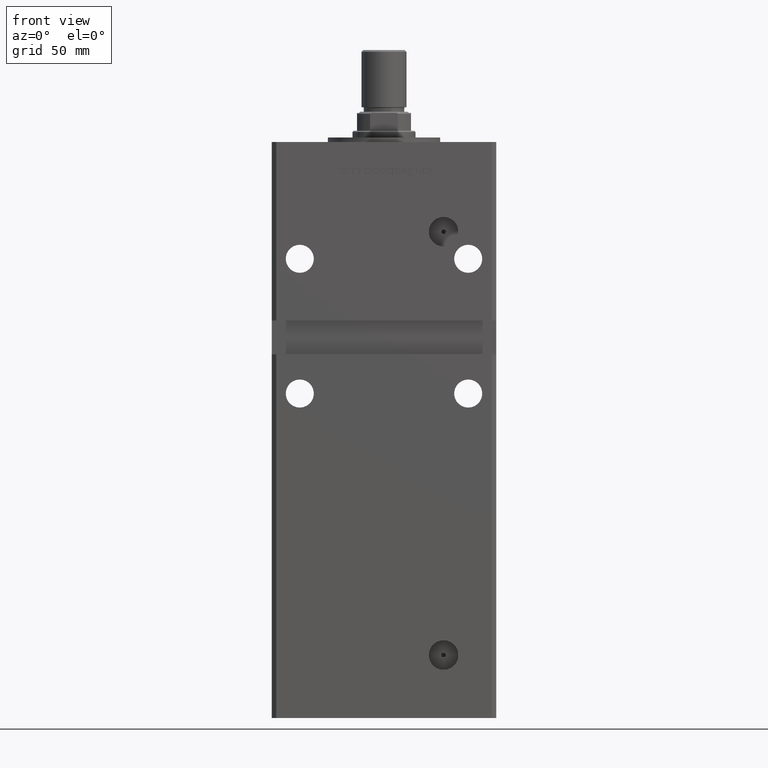
[diagram: clean part render]
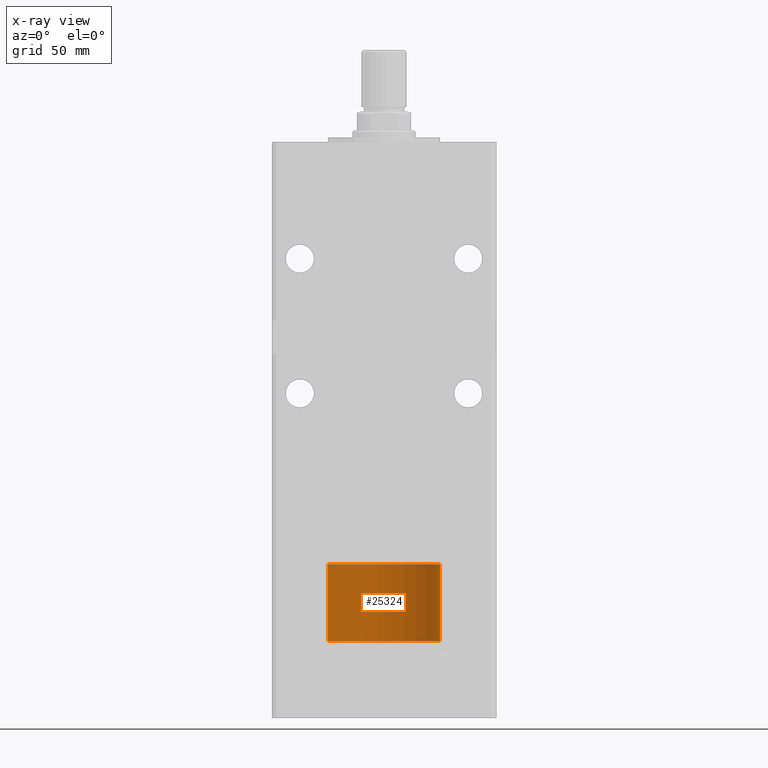
[diagram: x-ray — body ghosted, one internal face saturated and labeled with its STEP entity id]
A machine part, front view, then the same camera in x-ray: the body is ghosted and one INTERNAL B-rep face — a face not visible from any outside direction — is saturated and labeled: STEP entity #25324.
In plain terms, the highlighted cylindrical surface (partial cylindrical patch) has radius 25 mm, axis along (-0, -0, -1).
Its self-contained STEP definition (entity closure, byte-faithful):
#1442 = DIRECTION ( 'NONE',  ( -0.000000000000000000, -0.000000000000000000, -1.000000000000000000 ) ) ;
#2032 = VERTEX_POINT ( 'NONE', #10014 ) ;
#5400 = CIRCLE ( 'NONE', #39983, 25.00000000000000000 ) ;
#5650 = CARTESIAN_POINT ( 'NONE',  ( -25.00000000000000000, 0.000000000000000000, 34.25000000000000000 ) ) ;
#5779 = CARTESIAN_POINT ( 'NONE',  ( 0.000000000000000000, 0.000000000000000000, 34.25000000000000000 ) ) ;
#6048 = CYLINDRICAL_SURFACE ( 'NONE', #51772, 25.00000000000000000 ) ;
#6744 = CARTESIAN_POINT ( 'NONE',  ( 25.00000000000000000, 3.061616997868383043E-15, 34.25000000000000000 ) ) ;
#9443 = LINE ( 'NONE', #5650, #13651 ) ;
#10014 = CARTESIAN_POINT ( 'NONE',  ( -25.00000000000000000, 0.000000000000000000, 34.25000000000000000 ) ) ;
#10283 = CARTESIAN_POINT ( 'NONE',  ( 0.000000000000000000, 0.000000000000000000, 34.25000000000000000 ) ) ;
#10350 = DIRECTION ( 'NONE',  ( 0.000000000000000000, 0.000000000000000000, 1.000000000000000000 ) ) ;
#13535 = EDGE_CURVE ( 'NONE', #40594, #33466, #43209, .T. ) ;
#13651 = VECTOR ( 'NONE', #22171, 1000.000000000000000 ) ;
#15928 = EDGE_LOOP ( 'NONE', ( #52763, #32590, #36809, #30529 ) ) ;
#17238 = CARTESIAN_POINT ( 'NONE',  ( 25.00000000000000000, 3.061616997868383043E-15, 0.000000000000000000 ) ) ;
#18843 = DIRECTION ( 'NONE',  ( -0.000000000000000000, -0.000000000000000000, -1.000000000000000000 ) ) ;
#22171 = DIRECTION ( 'NONE',  ( -0.000000000000000000, -0.000000000000000000, -1.000000000000000000 ) ) ;
#23583 = AXIS2_PLACEMENT_3D ( 'NONE', #39051, #10350, #31200 ) ;
#23821 = EDGE_CURVE ( 'NONE', #2032, #48930, #9443, .T. ) ;
#25324 = ADVANCED_FACE ( 'NONE', ( #43431 ), #6048, .T. ) ;
#26794 = DIRECTION ( 'NONE',  ( 0.000000000000000000, 0.000000000000000000, 1.000000000000000000 ) ) ;
#30161 = DIRECTION ( 'NONE',  ( -1.000000000000000000, 0.000000000000000000, 0.000000000000000000 ) ) ;
#30529 = ORIENTED_EDGE ( 'NONE', *, *, #23821, .F. ) ;
#31200 = DIRECTION ( 'NONE',  ( 1.000000000000000000, 0.000000000000000000, 0.000000000000000000 ) ) ;
#31289 = CARTESIAN_POINT ( 'NONE',  ( 25.00000000000000000, 3.061616997868383043E-15, 34.25000000000000000 ) ) ;
#32590 = ORIENTED_EDGE ( 'NONE', *, *, #13535, .T. ) ;
#33466 = VERTEX_POINT ( 'NONE', #17238 ) ;
#36699 = EDGE_CURVE ( 'NONE', #40594, #2032, #5400, .T. ) ;
#36809 = ORIENTED_EDGE ( 'NONE', *, *, #41186, .T. ) ;
#39051 = CARTESIAN_POINT ( 'NONE',  ( 0.000000000000000000, 0.000000000000000000, 0.000000000000000000 ) ) ;
#39983 = AXIS2_PLACEMENT_3D ( 'NONE', #10283, #26794, #43325 ) ;
#40594 = VERTEX_POINT ( 'NONE', #6744 ) ;
#41186 = EDGE_CURVE ( 'NONE', #33466, #48930, #47800, .T. ) ;
#43209 = LINE ( 'NONE', #31289, #45487 ) ;
#43325 = DIRECTION ( 'NONE',  ( 1.000000000000000000, 0.000000000000000000, 0.000000000000000000 ) ) ;
#43431 = FACE_OUTER_BOUND ( 'NONE', #15928, .T. ) ;
#45487 = VECTOR ( 'NONE', #18843, 1000.000000000000000 ) ;
#47417 = CARTESIAN_POINT ( 'NONE',  ( -25.00000000000000000, 0.000000000000000000, 0.000000000000000000 ) ) ;
#47800 = CIRCLE ( 'NONE', #23583, 25.00000000000000000 ) ;
#48930 = VERTEX_POINT ( 'NONE', #47417 ) ;
#51772 = AXIS2_PLACEMENT_3D ( 'NONE', #5779, #1442, #30161 ) ;
#52763 = ORIENTED_EDGE ( 'NONE', *, *, #36699, .F. ) ;